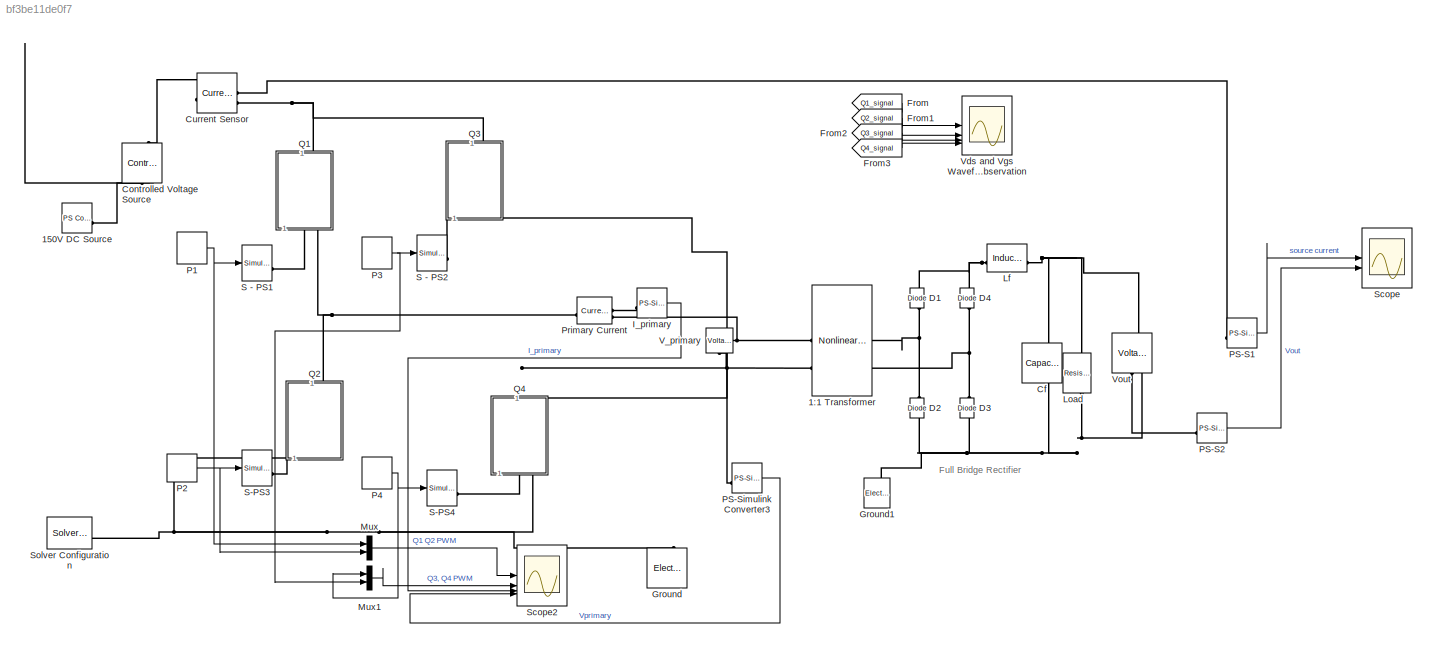
MODEL slx_bf3be11de0f7
KIND model
CONFIG AbsTol = auto
CONFIG EnableMultiTasking = on
CONFIG FixedStep = auto
CONFIG MaxStep = auto
CONFIG MinStep = auto
CONFIG RelTol = 1e-3
CONFIG SampleTimeConstraint = Unconstrained
CONFIG SolverName = VariableStepAuto
CONFIG StartTime = 0.0
CONFIG StopTime = 0.001
BLOCK [Reference] 150V DC Source  REF=fl_lib/Physical Signals/Sources/PS Constant
  SourceBlock = fl_lib/Physical Signals/Sources/PS Constant
  SourceType = PS Constant
BLOCK [Reference] 1:1 Transformer  REF=ee_lib/Passive/Transformers/Nonlinear
Transformer
  SourceBlock = ee_lib/Passive/Transformers/Nonlinear\nTransformer
  SourceType = Nonlinear\nTransformer
BLOCK [Reference] Cf  REF=fl_lib/Electrical/Electrical Elements/Capacitor
  NameLocation = left
  SourceBlock = fl_lib/Electrical/Electrical Elements/Capacitor
  SourceType = Capacitor
BLOCK [Reference] Controlled Voltage Source  REF=fl_lib/Electrical/Electrical Sources/Controlled Voltage
Source
  NameLocation = right
  SourceBlock = fl_lib/Electrical/Electrical Sources/Controlled Voltage\nSource
  SourceType = Controlled Voltage\nSource
BLOCK [Reference] Current Sensor  REF=fl_lib/Electrical/Electrical Sensors/Current Sensor
  SourceBlock = fl_lib/Electrical/Electrical Sensors/Current Sensor
  SourceType = Current Sensor
BLOCK [Reference] D1  REF=ee_lib/Semiconductors &
Converters/Diode
  NameLocation = right
  SourceBlock = ee_lib/Semiconductors &\nConverters/Diode
  SourceType = Diode
BLOCK [Reference] D2  REF=ee_lib/Semiconductors &
Converters/Diode
  NameLocation = right
  SourceBlock = ee_lib/Semiconductors &\nConverters/Diode
  SourceType = Diode
BLOCK [Reference] D3  REF=ee_lib/Semiconductors &
Converters/Diode
  NameLocation = right
  SourceBlock = ee_lib/Semiconductors &\nConverters/Diode
  SourceType = Diode
BLOCK [Reference] D4  REF=ee_lib/Semiconductors &
Converters/Diode
  NameLocation = right
  SourceBlock = ee_lib/Semiconductors &\nConverters/Diode
  SourceType = Diode
BLOCK [From] From
  GotoTag = Q1_signal
  TagVisibility = global
BLOCK [From] From1
  GotoTag = Q2_signal
  TagVisibility = global
BLOCK [From] From2
  GotoTag = Q3_signal
  TagVisibility = global
BLOCK [From] From3
  GotoTag = Q4_signal
  TagVisibility = global
BLOCK [Reference] Ground  REF=fl_lib/Electrical/Electrical Elements/Electrical Reference
  NameLocation = right
  SourceBlock = fl_lib/Electrical/Electrical Elements/Electrical Reference
  SourceType = Electrical Reference
BLOCK [Reference] Ground1  REF=fl_lib/Electrical/Electrical Elements/Electrical Reference
  NameLocation = right
  SourceBlock = fl_lib/Electrical/Electrical Elements/Electrical Reference
  SourceType = Electrical Reference
BLOCK [Reference] I_primary  REF=nesl_utility/PS-Simulink
Converter
  SourceBlock = nesl_utility/PS-Simulink\nConverter
  SourceType = PS-Simulink\nConverter
BLOCK [Reference] Lf  REF=fl_lib/Electrical/Electrical Elements/Inductor
  SourceBlock = fl_lib/Electrical/Electrical Elements/Inductor
  SourceType = Inductor
BLOCK [Reference] Load  REF=fl_lib/Electrical/Electrical Elements/Resistor
  NameLocation = right
  SourceBlock = fl_lib/Electrical/Electrical Elements/Resistor
  SourceType = Resistor
BLOCK [Mux] Mux
  DisplayOption = bar
  Inputs = 2
BLOCK [Mux] Mux1
  DisplayOption = bar
  Inputs = 2
BLOCK [DiscretePulseGenerator] P1
  Amplitude = A
  Period = 1/100e3
  PulseType = Time based
  PulseWidth = 50
BLOCK [DiscretePulseGenerator] P2
  Amplitude = A
  Period = 1/100e3
  PhaseDelay = (1/200e3) + 120e-9
  PulseType = Time based
  PulseWidth = 48
BLOCK [DiscretePulseGenerator] P3
  Amplitude = A
  Period = 1/100e3
  PhaseDelay = 0.2*(1/100e3)
  PulseType = Time based
  PulseWidth = 50
BLOCK [DiscretePulseGenerator] P4
  Amplitude = A
  Period = 1/100e3
  PhaseDelay = 0.2*(1/100e3) + (1/200e3)+120e-9
  PulseType = Time based
  PulseWidth = 48
BLOCK [Reference] PS-S1  REF=nesl_utility/PS-Simulink
Converter
  SourceBlock = nesl_utility/PS-Simulink\nConverter
  SourceType = PS-Simulink\nConverter
BLOCK [Reference] PS-S2  REF=nesl_utility/PS-Simulink
Converter
  SourceBlock = nesl_utility/PS-Simulink\nConverter
  SourceType = PS-Simulink\nConverter
BLOCK [Reference] PS-Simulink Converter3  REF=nesl_utility/PS-Simulink
Converter
  SourceBlock = nesl_utility/PS-Simulink\nConverter
  SourceType = PS-Simulink\nConverter
BLOCK [Reference] Primary Current  REF=fl_lib/Electrical/Electrical Sensors/Current Sensor
  SourceBlock = fl_lib/Electrical/Electrical Sensors/Current Sensor
  SourceType = Current Sensor
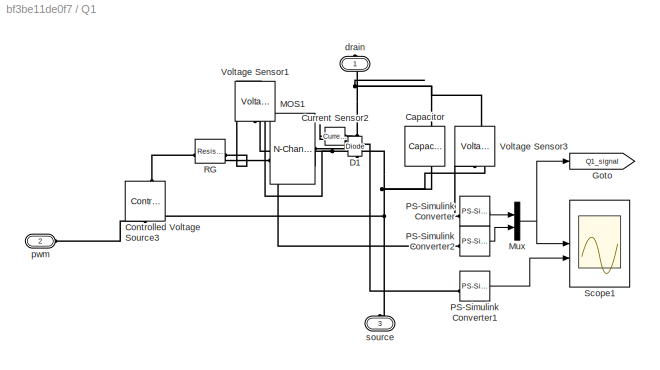
BLOCK [SubSystem] Q1
  NameLocation = right
BLOCK [Reference] Q1/Capacitor  REF=fl_lib/Electrical/Electrical Elements/Capacitor
  NameLocation = left
  SourceBlock = fl_lib/Electrical/Electrical Elements/Capacitor
  SourceType = Capacitor
BLOCK [Reference] Q1/Controlled Voltage Source3  REF=fl_lib/Electrical/Electrical Sources/Controlled Voltage
Source
  NameLocation = right
  SourceBlock = fl_lib/Electrical/Electrical Sources/Controlled Voltage\nSource
  SourceType = Controlled Voltage\nSource
BLOCK [Reference] Q1/Current Sensor2  REF=fl_lib/Electrical/Electrical Sensors/Current Sensor
  NameLocation = top
  SourceBlock = fl_lib/Electrical/Electrical Sensors/Current Sensor
  SourceType = Current Sensor
BLOCK [Reference] Q1/D1  REF=ee_lib/Semiconductors &
Converters/Diode
  NameLocation = right
  SourceBlock = ee_lib/Semiconductors &\nConverters/Diode
  SourceType = Diode
BLOCK [Goto] Q1/Goto
  GotoTag = Q1_signal
  TagVisibility = global
BLOCK [Reference] Q1/MOS1  REF=ee_lib/Semiconductors &
Converters/N-Channel MOSFET
  SourceBlock = ee_lib/Semiconductors &\nConverters/N-Channel MOSFET
  SourceType = N-Channel MOSFET
BLOCK [Mux] Q1/Mux
  DisplayOption = bar
  Inputs = 2
BLOCK [Reference] Q1/PS-Simulink Converter  REF=nesl_utility/PS-Simulink
Converter
  SourceBlock = nesl_utility/PS-Simulink\nConverter
  SourceType = PS-Simulink\nConverter
BLOCK [Reference] Q1/PS-Simulink Converter1  REF=nesl_utility/PS-Simulink
Converter
  SourceBlock = nesl_utility/PS-Simulink\nConverter
  SourceType = PS-Simulink\nConverter
BLOCK [Reference] Q1/PS-Simulink Converter2  REF=nesl_utility/PS-Simulink
Converter
  SourceBlock = nesl_utility/PS-Simulink\nConverter
  SourceType = PS-Simulink\nConverter
BLOCK [Reference] Q1/RG  REF=fl_lib/Electrical/Electrical Elements/Resistor
  SourceBlock = fl_lib/Electrical/Electrical Elements/Resistor
  SourceType = Resistor
BLOCK [Scope] Q1/Scope1
  Floating = off
  NumInputPorts = 2
  ScopeSpecificationString = Simulink.scopes.TimeScopeBlockCfg('CurrentConfiguration', extmgr.ConfigurationSet(extmgr.Configuration('Core','General UI',true),extmgr.Configuration('Core','Source UI',true),extmgr.Configuration('Sources','WiredSimulink',true,'DataLoggingSaveFormat','Array','DataLoggingDecimation','1','DataLoggingDecimateData',true,'DataLoggingVariableName','ScopeData2'),extmgr.Configuration('Visuals','Time Domai...<+3749ch>  <repeated x4 — deduplicated; at blocks: Scope1>
BLOCK [Reference] Q1/Voltage Sensor1  REF=fl_lib/Electrical/Electrical Sensors/Voltage Sensor
  NameLocation = right
  SourceBlock = fl_lib/Electrical/Electrical Sensors/Voltage Sensor
  SourceType = Voltage Sensor
BLOCK [Reference] Q1/Voltage Sensor3  REF=fl_lib/Electrical/Electrical Sensors/Voltage Sensor
  NameLocation = right
  SourceBlock = fl_lib/Electrical/Electrical Sensors/Voltage Sensor
  SourceType = Voltage Sensor
BLOCK [PMIOPort] Q1/drain
  NameLocation = right
  Side = Right
BLOCK [PMIOPort] Q1/pwm
  Port = 2
  Side = Left
BLOCK [PMIOPort] Q1/source
  NameLocation = right
  Port = 3
  Side = Left
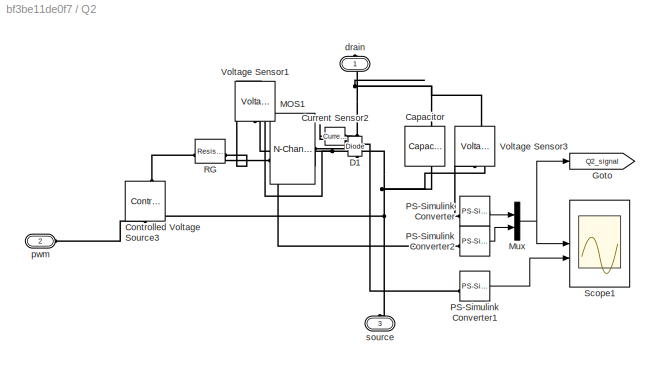
BLOCK [SubSystem] Q2
  NameLocation = right
BLOCK [Reference] Q2/Capacitor  REF=fl_lib/Electrical/Electrical Elements/Capacitor
  NameLocation = left
  SourceBlock = fl_lib/Electrical/Electrical Elements/Capacitor
  SourceType = Capacitor
BLOCK [Reference] Q2/Controlled Voltage Source3  REF=fl_lib/Electrical/Electrical Sources/Controlled Voltage
Source
  NameLocation = right
  SourceBlock = fl_lib/Electrical/Electrical Sources/Controlled Voltage\nSource
  SourceType = Controlled Voltage\nSource
BLOCK [Reference] Q2/Current Sensor2  REF=fl_lib/Electrical/Electrical Sensors/Current Sensor
  NameLocation = top
  SourceBlock = fl_lib/Electrical/Electrical Sensors/Current Sensor
  SourceType = Current Sensor
BLOCK [Reference] Q2/D1  REF=ee_lib/Semiconductors &
Converters/Diode
  NameLocation = right
  SourceBlock = ee_lib/Semiconductors &\nConverters/Diode
  SourceType = Diode
BLOCK [Goto] Q2/Goto
  GotoTag = Q2_signal
  TagVisibility = global
BLOCK [Reference] Q2/MOS1  REF=ee_lib/Semiconductors &
Converters/N-Channel MOSFET
  SourceBlock = ee_lib/Semiconductors &\nConverters/N-Channel MOSFET
  SourceType = N-Channel MOSFET
BLOCK [Mux] Q2/Mux
  DisplayOption = bar
  Inputs = 2
BLOCK [Reference] Q2/PS-Simulink Converter  REF=nesl_utility/PS-Simulink
Converter
  SourceBlock = nesl_utility/PS-Simulink\nConverter
  SourceType = PS-Simulink\nConverter
BLOCK [Reference] Q2/PS-Simulink Converter1  REF=nesl_utility/PS-Simulink
Converter
  SourceBlock = nesl_utility/PS-Simulink\nConverter
  SourceType = PS-Simulink\nConverter
BLOCK [Reference] Q2/PS-Simulink Converter2  REF=nesl_utility/PS-Simulink
Converter
  SourceBlock = nesl_utility/PS-Simulink\nConverter
  SourceType = PS-Simulink\nConverter
BLOCK [Reference] Q2/RG  REF=fl_lib/Electrical/Electrical Elements/Resistor
  SourceBlock = fl_lib/Electrical/Electrical Elements/Resistor
  SourceType = Resistor
BLOCK [Scope] Q2/Scope1
  Floating = off
  NumInputPorts = 2
BLOCK [Reference] Q2/Voltage Sensor1  REF=fl_lib/Electrical/Electrical Sensors/Voltage Sensor
  NameLocation = right
  SourceBlock = fl_lib/Electrical/Electrical Sensors/Voltage Sensor
  SourceType = Voltage Sensor
BLOCK [Reference] Q2/Voltage Sensor3  REF=fl_lib/Electrical/Electrical Sensors/Voltage Sensor
  NameLocation = right
  SourceBlock = fl_lib/Electrical/Electrical Sensors/Voltage Sensor
  SourceType = Voltage Sensor
BLOCK [PMIOPort] Q2/drain
  NameLocation = right
  Side = Right
BLOCK [PMIOPort] Q2/pwm
  Port = 2
  Side = Left
BLOCK [PMIOPort] Q2/source
  NameLocation = right
  Port = 3
  Side = Left
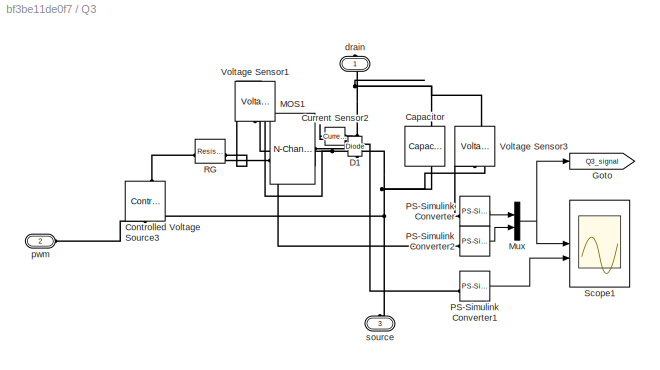
BLOCK [SubSystem] Q3
  NameLocation = right
BLOCK [Reference] Q3/Capacitor  REF=fl_lib/Electrical/Electrical Elements/Capacitor
  NameLocation = left
  SourceBlock = fl_lib/Electrical/Electrical Elements/Capacitor
  SourceType = Capacitor
BLOCK [Reference] Q3/Controlled Voltage Source3  REF=fl_lib/Electrical/Electrical Sources/Controlled Voltage
Source
  NameLocation = right
  SourceBlock = fl_lib/Electrical/Electrical Sources/Controlled Voltage\nSource
  SourceType = Controlled Voltage\nSource
BLOCK [Reference] Q3/Current Sensor2  REF=fl_lib/Electrical/Electrical Sensors/Current Sensor
  NameLocation = top
  SourceBlock = fl_lib/Electrical/Electrical Sensors/Current Sensor
  SourceType = Current Sensor
BLOCK [Reference] Q3/D1  REF=ee_lib/Semiconductors &
Converters/Diode
  NameLocation = right
  SourceBlock = ee_lib/Semiconductors &\nConverters/Diode
  SourceType = Diode
BLOCK [Goto] Q3/Goto
  GotoTag = Q3_signal
  TagVisibility = global
BLOCK [Reference] Q3/MOS1  REF=ee_lib/Semiconductors &
Converters/N-Channel MOSFET
  SourceBlock = ee_lib/Semiconductors &\nConverters/N-Channel MOSFET
  SourceType = N-Channel MOSFET
BLOCK [Mux] Q3/Mux
  DisplayOption = bar
  Inputs = 2
BLOCK [Reference] Q3/PS-Simulink Converter  REF=nesl_utility/PS-Simulink
Converter
  SourceBlock = nesl_utility/PS-Simulink\nConverter
  SourceType = PS-Simulink\nConverter
BLOCK [Reference] Q3/PS-Simulink Converter1  REF=nesl_utility/PS-Simulink
Converter
  SourceBlock = nesl_utility/PS-Simulink\nConverter
  SourceType = PS-Simulink\nConverter
BLOCK [Reference] Q3/PS-Simulink Converter2  REF=nesl_utility/PS-Simulink
Converter
  SourceBlock = nesl_utility/PS-Simulink\nConverter
  SourceType = PS-Simulink\nConverter
BLOCK [Reference] Q3/RG  REF=fl_lib/Electrical/Electrical Elements/Resistor
  SourceBlock = fl_lib/Electrical/Electrical Elements/Resistor
  SourceType = Resistor
BLOCK [Scope] Q3/Scope1
  Floating = off
  NumInputPorts = 2
BLOCK [Reference] Q3/Voltage Sensor1  REF=fl_lib/Electrical/Electrical Sensors/Voltage Sensor
  NameLocation = right
  SourceBlock = fl_lib/Electrical/Electrical Sensors/Voltage Sensor
  SourceType = Voltage Sensor
BLOCK [Reference] Q3/Voltage Sensor3  REF=fl_lib/Electrical/Electrical Sensors/Voltage Sensor
  NameLocation = right
  SourceBlock = fl_lib/Electrical/Electrical Sensors/Voltage Sensor
  SourceType = Voltage Sensor
BLOCK [PMIOPort] Q3/drain
  NameLocation = right
  Side = Right
BLOCK [PMIOPort] Q3/pwm
  Port = 2
  Side = Left
BLOCK [PMIOPort] Q3/source
  NameLocation = right
  Port = 3
  Side = Left
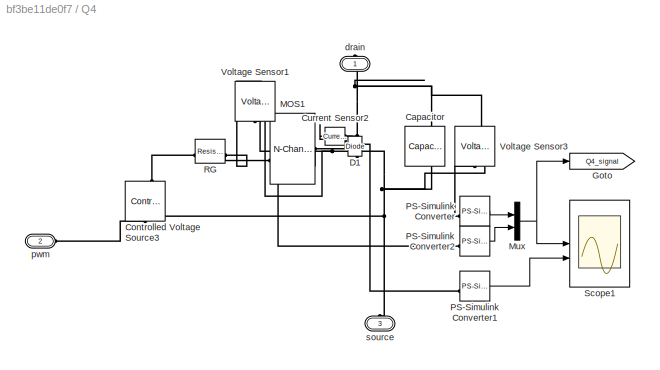
BLOCK [SubSystem] Q4
  NameLocation = right
BLOCK [Reference] Q4/Capacitor  REF=fl_lib/Electrical/Electrical Elements/Capacitor
  NameLocation = left
  SourceBlock = fl_lib/Electrical/Electrical Elements/Capacitor
  SourceType = Capacitor
BLOCK [Reference] Q4/Controlled Voltage Source3  REF=fl_lib/Electrical/Electrical Sources/Controlled Voltage
Source
  NameLocation = right
  SourceBlock = fl_lib/Electrical/Electrical Sources/Controlled Voltage\nSource
  SourceType = Controlled Voltage\nSource
BLOCK [Reference] Q4/Current Sensor2  REF=fl_lib/Electrical/Electrical Sensors/Current Sensor
  NameLocation = top
  SourceBlock = fl_lib/Electrical/Electrical Sensors/Current Sensor
  SourceType = Current Sensor
BLOCK [Reference] Q4/D1  REF=ee_lib/Semiconductors &
Converters/Diode
  NameLocation = right
  SourceBlock = ee_lib/Semiconductors &\nConverters/Diode
  SourceType = Diode
BLOCK [Goto] Q4/Goto
  GotoTag = Q4_signal
  TagVisibility = global
BLOCK [Reference] Q4/MOS1  REF=ee_lib/Semiconductors &
Converters/N-Channel MOSFET
  SourceBlock = ee_lib/Semiconductors &\nConverters/N-Channel MOSFET
  SourceType = N-Channel MOSFET
BLOCK [Mux] Q4/Mux
  DisplayOption = bar
  Inputs = 2
BLOCK [Reference] Q4/PS-Simulink Converter  REF=nesl_utility/PS-Simulink
Converter
  SourceBlock = nesl_utility/PS-Simulink\nConverter
  SourceType = PS-Simulink\nConverter
BLOCK [Reference] Q4/PS-Simulink Converter1  REF=nesl_utility/PS-Simulink
Converter
  SourceBlock = nesl_utility/PS-Simulink\nConverter
  SourceType = PS-Simulink\nConverter
BLOCK [Reference] Q4/PS-Simulink Converter2  REF=nesl_utility/PS-Simulink
Converter
  SourceBlock = nesl_utility/PS-Simulink\nConverter
  SourceType = PS-Simulink\nConverter
BLOCK [Reference] Q4/RG  REF=fl_lib/Electrical/Electrical Elements/Resistor
  SourceBlock = fl_lib/Electrical/Electrical Elements/Resistor
  SourceType = Resistor
BLOCK [Scope] Q4/Scope1
  Floating = off
  NumInputPorts = 2
BLOCK [Reference] Q4/Voltage Sensor1  REF=fl_lib/Electrical/Electrical Sensors/Voltage Sensor
  NameLocation = right
  SourceBlock = fl_lib/Electrical/Electrical Sensors/Voltage Sensor
  SourceType = Voltage Sensor
BLOCK [Reference] Q4/Voltage Sensor3  REF=fl_lib/Electrical/Electrical Sensors/Voltage Sensor
  NameLocation = right
  SourceBlock = fl_lib/Electrical/Electrical Sensors/Voltage Sensor
  SourceType = Voltage Sensor
BLOCK [PMIOPort] Q4/drain
  NameLocation = right
  Side = Right
BLOCK [PMIOPort] Q4/pwm
  Port = 2
  Side = Left
BLOCK [PMIOPort] Q4/source
  NameLocation = right
  Port = 3
  Side = Left
BLOCK [Reference] S - PS1  REF=nesl_utility/Simulink-PS
Converter
  Priority = 1
  SourceBlock = nesl_utility/Simulink-PS\nConverter
  SourceType = Simulink-PS\nConverter
BLOCK [Reference] S - PS2  REF=nesl_utility/Simulink-PS
Converter
  Priority = 1
  SourceBlock = nesl_utility/Simulink-PS\nConverter
  SourceType = Simulink-PS\nConverter
BLOCK [Reference] S-PS3  REF=nesl_utility/Simulink-PS
Converter
  Priority = 1
  SourceBlock = nesl_utility/Simulink-PS\nConverter
  SourceType = Simulink-PS\nConverter
BLOCK [Reference] S-PS4  REF=nesl_utility/Simulink-PS
Converter
  Priority = 1
  SourceBlock = nesl_utility/Simulink-PS\nConverter
  SourceType = Simulink-PS\nConverter
BLOCK [Scope] Scope
  Floating = off
  NumInputPorts = 2
  ScopeSpecificationString = Simulink.scopes.TimeScopeBlockCfg('CurrentConfiguration', extmgr.ConfigurationSet(extmgr.Configuration('Core','General UI',true),extmgr.Configuration('Core','Source UI',true),extmgr.Configuration('Sources','WiredSimulink',true,'DataLoggingSaveFormat','Array','DataLoggingDecimation','1','DataLoggingDecimateData',true),extmgr.Configuration('Visuals','Time Domain',true,'SerializedDisplays',{struct('M...<+3648ch>
BLOCK [Scope] Scope2
  Floating = off
  NumInputPorts = 4
  ScopeSpecificationString = Simulink.scopes.TimeScopeBlockCfg('CurrentConfiguration', extmgr.ConfigurationSet(extmgr.Configuration('Core','General UI',true),extmgr.Configuration('Core','Source UI',true),extmgr.Configuration('Sources','WiredSimulink',true,'DataLoggingSaveFormat','Array','DataLoggingDecimation','1','DataLoggingDecimateData',true,'DataLoggingVariableName','ScopeData3'),extmgr.Configuration('Visuals','Time Domai...<+3705ch>
BLOCK [Reference] Solver Configuration  REF=nesl_utility/Solver
Configuration
  SourceBlock = nesl_utility/Solver\nConfiguration
  SourceType = Solver\nConfiguration
BLOCK [Reference] V_primary  REF=fl_lib/Electrical/Electrical Sensors/Voltage Sensor
  NameLocation = right
  SourceBlock = fl_lib/Electrical/Electrical Sensors/Voltage Sensor
  SourceType = Voltage Sensor
BLOCK [Scope] Vds and Vgs Waveforms for ZVS observation
  Floating = off
  NameLocation = top
  NumInputPorts = 4
  ScopeSpecificationString = Simulink.scopes.TimeScopeBlockCfg('CurrentConfiguration', extmgr.ConfigurationSet(extmgr.Configuration('Core','General UI',true),extmgr.Configuration('Core','Source UI',true),extmgr.Configuration('Sources','WiredSimulink',true,'DataLoggingSaveFormat','Array','DataLoggingDecimation','1','DataLoggingDecimateData',true,'DataLoggingVariableName','ScopeData1'),extmgr.Configuration('Visuals','Time Domai...<+3859ch>
BLOCK [Reference] Vout  REF=fl_lib/Electrical/Electrical Sensors/Voltage Sensor
  NameLocation = right
  SourceBlock = fl_lib/Electrical/Electrical Sensors/Voltage Sensor
  SourceType = Voltage Sensor
ANNOTATION (root): Full Bridge Rectifier
LINE From1:1 -> Vds and Vgs Waveforms for ZVS observation:2
LINE From2:1 -> Vds and Vgs Waveforms for ZVS observation:3
LINE From3:1 -> Vds and Vgs Waveforms for ZVS observation:4
LINE From:1 -> Vds and Vgs Waveforms for ZVS observation:1
LINE I_primary:1 -> Scope2:3
LINE Mux1:1 -> Scope2:2
LINE Mux:1 -> Scope2:1
NET P1:1 -> Mux:1, S - PS1:1
NET P2:1 -> Mux:2, S-PS3:1
NET P3:1 -> Mux1:2, S - PS2:1
NET P4:1 -> Mux1:1, S-PS4:1
LINE PS-S1:1 -> Scope:1
LINE PS-S2:1 -> Scope:2
LINE PS-Simulink Converter3:1 -> Scope2:4
NET Q1/Mux:1 -> Q1/Goto:1, Q1/Scope1:1
LINE Q1/PS-Simulink Converter1:1 -> Q1/Scope1:2
LINE Q1/PS-Simulink Converter2:1 -> Q1/Mux:2
LINE Q1/PS-Simulink Converter:1 -> Q1/Mux:1
NET Q2/Mux:1 -> Q2/Goto:1, Q2/Scope1:1
LINE Q2/PS-Simulink Converter1:1 -> Q2/Scope1:2
LINE Q2/PS-Simulink Converter2:1 -> Q2/Mux:2
LINE Q2/PS-Simulink Converter:1 -> Q2/Mux:1
NET Q3/Mux:1 -> Q3/Goto:1, Q3/Scope1:1
LINE Q3/PS-Simulink Converter1:1 -> Q3/Scope1:2
LINE Q3/PS-Simulink Converter2:1 -> Q3/Mux:2
LINE Q3/PS-Simulink Converter:1 -> Q3/Mux:1
NET Q4/Mux:1 -> Q4/Goto:1, Q4/Scope1:1
LINE Q4/PS-Simulink Converter1:1 -> Q4/Scope1:2
LINE Q4/PS-Simulink Converter2:1 -> Q4/Mux:2
LINE Q4/PS-Simulink Converter:1 -> Q4/Mux:1
PLINE 150V DC Source:RConn1 -- Controlled Voltage Source:RConn1
PNET net1: 1:1 Transformer:LConn1 -- Primary Current:RConn2 -- V_primary:LConn1
PNET net2: 1:1 Transformer:LConn2 -- Q3:LConn2 -- Q4:RConn1 -- V_primary:RConn2
PNET net3: 1:1 Transformer:RConn1 -- D1:LConn1 -- D2:RConn1
PNET net4: 1:1 Transformer:RConn2 -- D3:RConn1 -- D4:LConn1
PNET net5: Cf:LConn1 -- Lf:RConn1 -- Load:LConn1 -- Vout:LConn1
PNET net6: Cf:RConn1 -- D2:LConn1 -- D3:LConn1 -- Ground1:LConn1 -- Load:RConn1 -- Vout:RConn2
PLINE Controlled Voltage Source:LConn1 -- Current Sensor:LConn1
PNET net7: Controlled Voltage Source:RConn2 -- Ground:LConn1 -- Q2:LConn2 -- Q4:LConn2 -- Solver Configuration:RConn1
PLINE Current Sensor:RConn1 -- PS-S1:LConn1
PNET net8: Current Sensor:RConn2 -- Q1:RConn1 -- Q3:RConn1
PNET net9: D1:RConn1 -- D4:RConn1 -- Lf:LConn1
PLINE I_primary:LConn1 -- Primary Current:RConn1
PLINE PS-S2:LConn1 -- Vout:RConn1
PLINE PS-Simulink Converter3:LConn1 -- V_primary:RConn1
PNET net10: Primary Current:LConn1 -- Q1:LConn2 -- Q2:RConn1
PNET net11: Q1/Capacitor:LConn1 -- Q1/Current Sensor2:LConn1 -- Q1/D1:RConn1 -- Q1/Voltage Sensor3:LConn1 -- Q1/drain:RConn1
PNET net12: Q1/Capacitor:RConn1 -- Q1/Controlled Voltage Source3:RConn2 -- Q1/D1:LConn1 -- Q1/MOS1:RConn2 -- Q1/Voltage Sensor1:RConn2 -- Q1/Voltage Sensor3:RConn2 -- Q1/source:RConn1
PLINE Q1/Controlled Voltage Source3:LConn1 -- Q1/RG:LConn1
PLINE Q1/Controlled Voltage Source3:RConn1 -- Q1/pwm:RConn1
PLINE Q1/Current Sensor2:RConn1 -- Q1/PS-Simulink Converter1:LConn1
PLINE Q1/Current Sensor2:RConn2 -- Q1/MOS1:RConn1
PNET net13: Q1/MOS1:LConn1 -- Q1/RG:RConn1 -- Q1/Voltage Sensor1:LConn1
PLINE Q1/PS-Simulink Converter2:LConn1 -- Q1/Voltage Sensor1:RConn1
PLINE Q1/PS-Simulink Converter:LConn1 -- Q1/Voltage Sensor3:RConn1
PLINE Q1:LConn1 -- S - PS1:RConn1
PNET net14: Q2/Capacitor:LConn1 -- Q2/Current Sensor2:LConn1 -- Q2/D1:RConn1 -- Q2/Voltage Sensor3:LConn1 -- Q2/drain:RConn1
PNET net15: Q2/Capacitor:RConn1 -- Q2/Controlled Voltage Source3:RConn2 -- Q2/D1:LConn1 -- Q2/MOS1:RConn2 -- Q2/Voltage Sensor1:RConn2 -- Q2/Voltage Sensor3:RConn2 -- Q2/source:RConn1
PLINE Q2/Controlled Voltage Source3:LConn1 -- Q2/RG:LConn1
PLINE Q2/Controlled Voltage Source3:RConn1 -- Q2/pwm:RConn1
PLINE Q2/Current Sensor2:RConn1 -- Q2/PS-Simulink Converter1:LConn1
PLINE Q2/Current Sensor2:RConn2 -- Q2/MOS1:RConn1
PNET net16: Q2/MOS1:LConn1 -- Q2/RG:RConn1 -- Q2/Voltage Sensor1:LConn1
PLINE Q2/PS-Simulink Converter2:LConn1 -- Q2/Voltage Sensor1:RConn1
PLINE Q2/PS-Simulink Converter:LConn1 -- Q2/Voltage Sensor3:RConn1
PLINE Q2:LConn1 -- S-PS3:RConn1
PNET net17: Q3/Capacitor:LConn1 -- Q3/Current Sensor2:LConn1 -- Q3/D1:RConn1 -- Q3/Voltage Sensor3:LConn1 -- Q3/drain:RConn1
PNET net18: Q3/Capacitor:RConn1 -- Q3/Controlled Voltage Source3:RConn2 -- Q3/D1:LConn1 -- Q3/MOS1:RConn2 -- Q3/Voltage Sensor1:RConn2 -- Q3/Voltage Sensor3:RConn2 -- Q3/source:RConn1
PLINE Q3/Controlled Voltage Source3:LConn1 -- Q3/RG:LConn1
PLINE Q3/Controlled Voltage Source3:RConn1 -- Q3/pwm:RConn1
PLINE Q3/Current Sensor2:RConn1 -- Q3/PS-Simulink Converter1:LConn1
PLINE Q3/Current Sensor2:RConn2 -- Q3/MOS1:RConn1
PNET net19: Q3/MOS1:LConn1 -- Q3/RG:RConn1 -- Q3/Voltage Sensor1:LConn1
PLINE Q3/PS-Simulink Converter2:LConn1 -- Q3/Voltage Sensor1:RConn1
PLINE Q3/PS-Simulink Converter:LConn1 -- Q3/Voltage Sensor3:RConn1
PLINE Q3:LConn1 -- S - PS2:RConn1
PNET net20: Q4/Capacitor:LConn1 -- Q4/Current Sensor2:LConn1 -- Q4/D1:RConn1 -- Q4/Voltage Sensor3:LConn1 -- Q4/drain:RConn1
PNET net21: Q4/Capacitor:RConn1 -- Q4/Controlled Voltage Source3:RConn2 -- Q4/D1:LConn1 -- Q4/MOS1:RConn2 -- Q4/Voltage Sensor1:RConn2 -- Q4/Voltage Sensor3:RConn2 -- Q4/source:RConn1
PLINE Q4/Controlled Voltage Source3:LConn1 -- Q4/RG:LConn1
PLINE Q4/Controlled Voltage Source3:RConn1 -- Q4/pwm:RConn1
PLINE Q4/Current Sensor2:RConn1 -- Q4/PS-Simulink Converter1:LConn1
PLINE Q4/Current Sensor2:RConn2 -- Q4/MOS1:RConn1
PNET net22: Q4/MOS1:LConn1 -- Q4/RG:RConn1 -- Q4/Voltage Sensor1:LConn1
PLINE Q4/PS-Simulink Converter2:LConn1 -- Q4/Voltage Sensor1:RConn1
PLINE Q4/PS-Simulink Converter:LConn1 -- Q4/Voltage Sensor3:RConn1
PLINE Q4:LConn1 -- S-PS4:RConn1
note: NET lines group one-source signal fan-out (src -> all destinations, sorted); 1:1 wires keep LINE; PNET lines group multi-terminal physical nets as a canonical sorted terminal list (undirected conserving connections); 2-terminal nets keep the pairwise PLINE form
